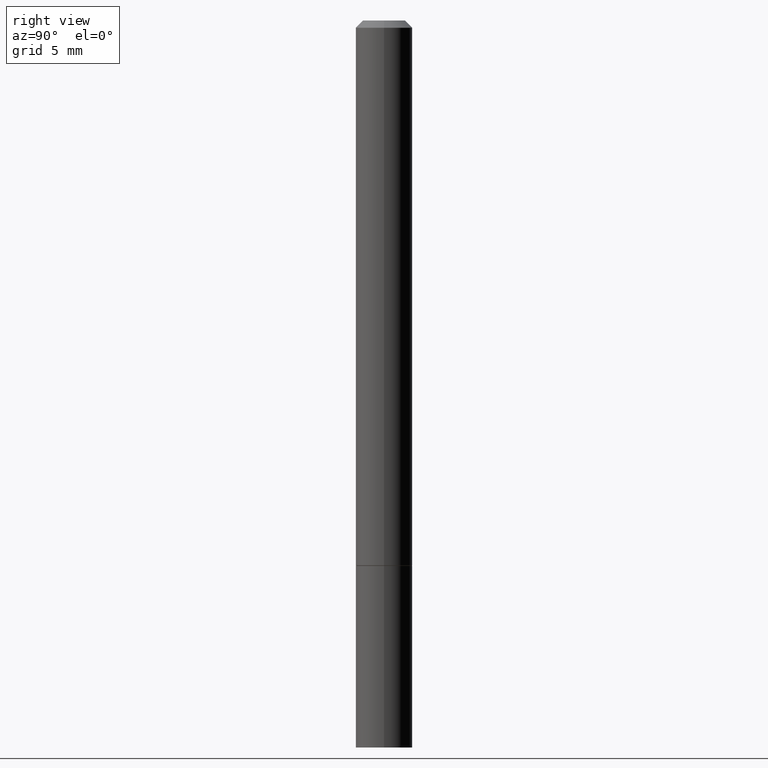
[diagram: clean part render]
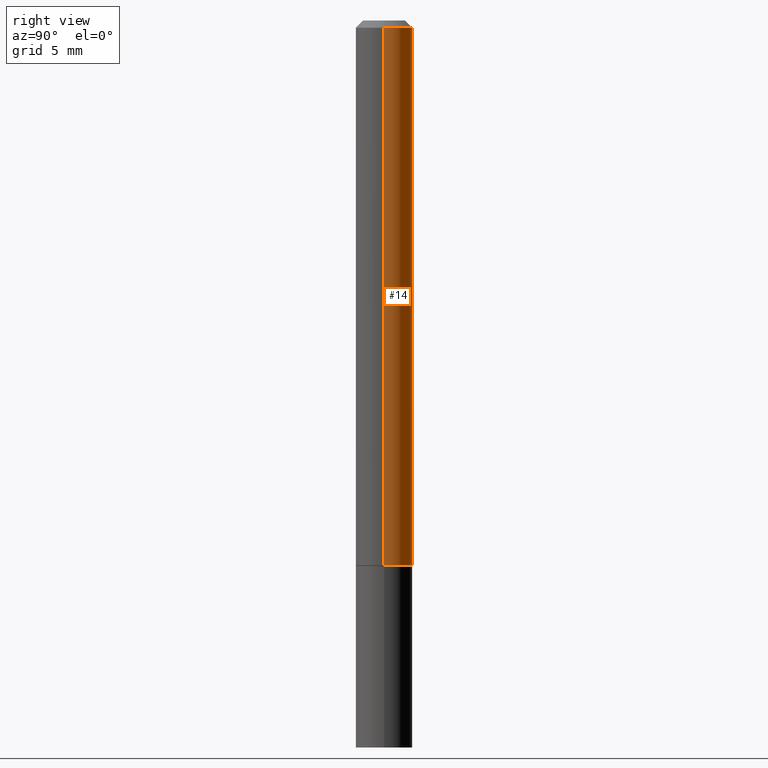
[diagram: same view with one face highlighted and labeled with its STEP entity id]
A machine part, right view. The second image highlights one B-rep face of the part: STEP entity #14.
In plain terms, the highlighted cylindrical surface (edge-blend (fillet) strip) has radius 1.9837 mm, axis along (-0, 0, 1).
Its self-contained STEP definition (entity closure, byte-faithful):
#14 = ADVANCED_FACE ( 'NONE', ( #158 ), #27, .T. ) ;
#19 = CIRCLE ( 'NONE', #20, 0.07809999999999980846 ) ;
#20 = AXIS2_PLACEMENT_3D ( 'NONE', #333, #33, #160 ) ;
#21 = EDGE_CURVE ( 'NONE', #55, #366, #64, .T. ) ;
#27 = CYLINDRICAL_SURFACE ( 'NONE', #274, 0.07809999999999991949 ) ;
#33 = DIRECTION ( 'NONE',  ( -2.445468806185136597E-29, 3.491481338843145583E-15, 1.000000000000000000 ) ) ;
#38 = VECTOR ( 'NONE', #188, 39.37007874015748143 ) ;
#41 = CARTESIAN_POINT ( 'NONE',  ( -0.07809999999999991949, 5.549338766286376731E-16, -3.841688305489077071E-30 ) ) ;
#45 = AXIS2_PLACEMENT_3D ( 'NONE', #208, #228, #83 ) ;
#48 = VERTEX_POINT ( 'NONE', #302 ) ;
#55 = VERTEX_POINT ( 'NONE', #363 ) ;
#56 = ORIENTED_EDGE ( 'NONE', *, *, #168, .F. ) ;
#64 = CIRCLE ( 'NONE', #45, 0.07810000000000000275 ) ;
#83 = DIRECTION ( 'NONE',  ( 1.000000000000000000, -6.982962677686266711E-15, 0.000000000000000000 ) ) ;
#95 = CARTESIAN_POINT ( 'NONE',  ( -0.07810000000000000275, -2.096846200222727419E-15, -1.498999999999999666 ) ) ;
#96 = ORIENTED_EDGE ( 'NONE', *, *, #139, .T. ) ;
#102 = VECTOR ( 'NONE', #220, 39.37007874015748143 ) ;
#112 = DIRECTION ( 'NONE',  ( 1.000000000000000000, -6.982962677686266711E-15, 4.876176775795935232E-29 ) ) ;
#139 = EDGE_CURVE ( 'NONE', #366, #286, #355, .T. ) ;
#158 = FACE_OUTER_BOUND ( 'NONE', #361, .T. ) ;
#160 = DIRECTION ( 'NONE',  ( 1.000000000000000000, -6.982962677686267499E-15, 0.000000000000000000 ) ) ;
#168 = EDGE_CURVE ( 'NONE', #55, #48, #272, .T. ) ;
#188 = DIRECTION ( 'NONE',  ( -2.445468806185136877E-29, 3.491481338843145188E-15, 1.000000000000000000 ) ) ;
#199 = ORIENTED_EDGE ( 'NONE', *, *, #21, .T. ) ;
#208 = CARTESIAN_POINT ( 'NONE',  ( 3.665757740471518732E-29, -5.233730526925875170E-15, -1.498999999999999666 ) ) ;
#219 = CARTESIAN_POINT ( 'NONE',  ( 0.07809999999999991949, -5.453693851272968448E-16, 3.808294061896621499E-30 ) ) ;
#220 = DIRECTION ( 'NONE',  ( -2.445468806185136877E-29, 3.491481338843145188E-15, 1.000000000000000000 ) ) ;
#228 = DIRECTION ( 'NONE',  ( -2.445468806185136597E-29, 3.491481338843145583E-15, 1.000000000000000000 ) ) ;
#259 = CARTESIAN_POINT ( 'NONE',  ( 0.000000000000000000, 0.000000000000000000, 0.000000000000000000 ) ) ;
#272 = LINE ( 'NONE', #219, #38 ) ;
#274 = AXIS2_PLACEMENT_3D ( 'NONE', #259, #385, #112 ) ;
#286 = VERTEX_POINT ( 'NONE', #356 ) ;
#302 = CARTESIAN_POINT ( 'NONE',  ( 0.07809999999999980846, -6.056345204028183286E-16, -0.02000000000000001776 ) ) ;
#328 = ORIENTED_EDGE ( 'NONE', *, *, #342, .F. ) ;
#333 = CARTESIAN_POINT ( 'NONE',  ( 4.890937612370276662E-31, -6.982962677686296539E-17, -0.02000000000000001776 ) ) ;
#342 = EDGE_CURVE ( 'NONE', #48, #286, #19, .T. ) ;
#355 = LINE ( 'NONE', #41, #102 ) ;
#356 = CARTESIAN_POINT ( 'NONE',  ( -0.07809999999999980846, 4.755397583504331521E-16, -0.02000000000000001776 ) ) ;
#361 = EDGE_LOOP ( 'NONE', ( #199, #96, #328, #56 ) ) ;
#363 = CARTESIAN_POINT ( 'NONE',  ( 0.07810000000000000275, -5.779099912053172606E-15, -1.498999999999999666 ) ) ;
#366 = VERTEX_POINT ( 'NONE', #95 ) ;
#385 = DIRECTION ( 'NONE',  ( -2.445468806185136597E-29, 3.491481338843145583E-15, 1.000000000000000000 ) ) ;